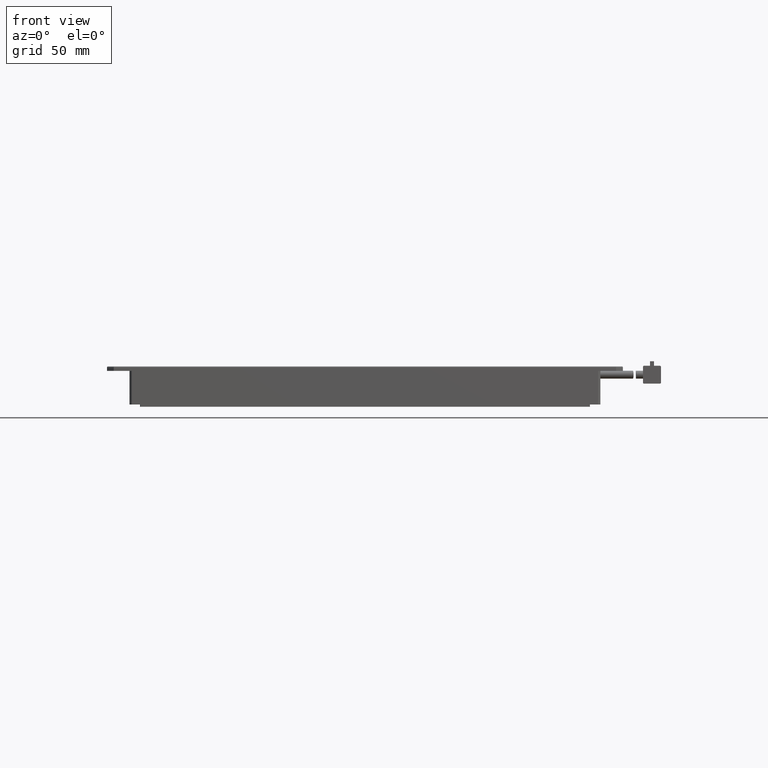
[diagram: clean part render]
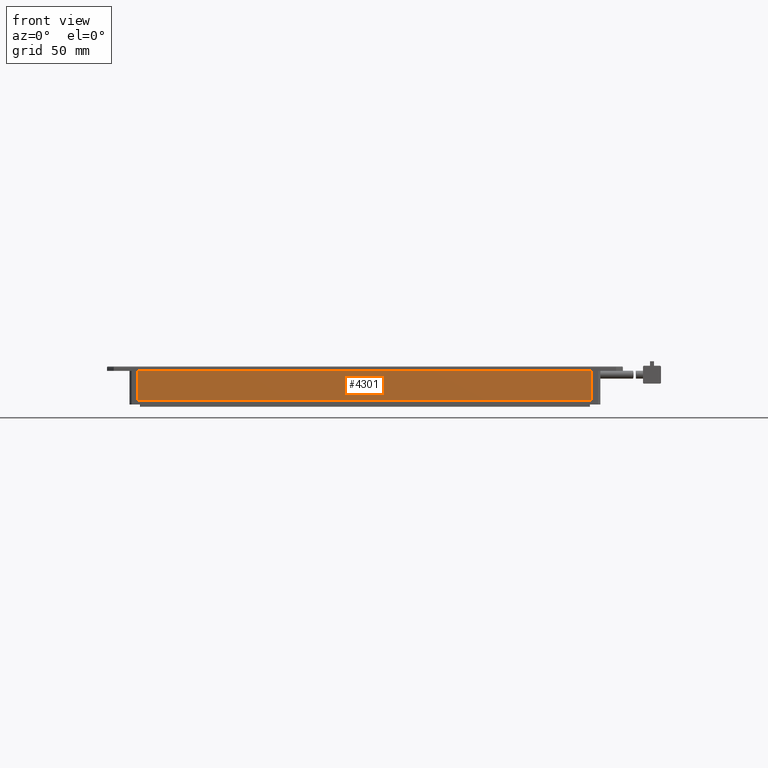
[diagram: same view with one face highlighted and labeled with its STEP entity id]
A machine part, front view. The second image highlights one B-rep face of the part: STEP entity #4301.
In plain terms, the highlighted planar face has unit normal (-0, 1, 0).
Its self-contained STEP definition (entity closure, byte-faithful):
#601 = DIRECTION ( 'NONE',  ( -1.243375699538492300E-016, -1.545983130202835100E-032, 1.000000000000000000 ) ) ;
#1438 = VECTOR ( 'NONE', #601, 1000.000000000000000 ) ;
#1871 = LINE ( 'NONE', #4839, #18119 ) ;
#2231 = DIRECTION ( 'NONE',  ( -1.000000000000000000, -1.243375699538492300E-016, -1.243375699538492300E-016 ) ) ;
#2743 = LINE ( 'NONE', #4883, #20672 ) ;
#2836 = DIRECTION ( 'NONE',  ( 1.000000000000000000, 1.243375699538492300E-016, 1.243375699538492300E-016 ) ) ;
#3466 = VERTEX_POINT ( 'NONE', #17886 ) ;
#3962 = PLANE ( 'NONE',  #18662 ) ;
#4301 = ADVANCED_FACE ( 'NONE', ( #5844 ), #3962, .F. ) ;
#4550 = VERTEX_POINT ( 'NONE', #9807 ) ;
#4839 = CARTESIAN_POINT ( 'NONE',  ( 18.66575058247610400, -139.3787539827808600, -2.363473999844600800E-011 ) ) ;
#4883 = CARTESIAN_POINT ( 'NONE',  ( 18.66575058247610400, -139.3787539827808600, -13.00000000002365900 ) ) ;
#5844 = FACE_OUTER_BOUND ( 'NONE', #11862, .T. ) ;
#6114 = LINE ( 'NONE', #12775, #1438 ) ;
#6759 = CARTESIAN_POINT ( 'NONE',  ( 18.66575058247610400, -139.3787539827808600, -6.500000000023645100 ) ) ;
#6772 = EDGE_CURVE ( 'NONE', #4550, #11994, #2743, .T. ) ;
#6928 = ORIENTED_EDGE ( 'NONE', *, *, #16944, .F. ) ;
#9807 = CARTESIAN_POINT ( 'NONE',  ( 119.8157505824761400, -139.3787539827808600, -13.00000000002364900 ) ) ;
#10189 = ORIENTED_EDGE ( 'NONE', *, *, #12022, .F. ) ;
#11403 = CARTESIAN_POINT ( 'NONE',  ( -82.48424941752387000, -139.3787539827808600, -13.00000000002365200 ) ) ;
#11862 = EDGE_LOOP ( 'NONE', ( #14715, #10189, #6928, #20848 ) ) ;
#11967 = LINE ( 'NONE', #18638, #16296 ) ;
#11994 = VERTEX_POINT ( 'NONE', #11403 ) ;
#12022 = EDGE_CURVE ( 'NONE', #3466, #4550, #11967, .T. ) ;
#12775 = CARTESIAN_POINT ( 'NONE',  ( -82.48424941752387000, -139.3787539827808600, -6.500000000023656600 ) ) ;
#13387 = DIRECTION ( 'NONE',  ( 1.243375699538492300E-016, 1.545983130202835100E-032, -1.000000000000000000 ) ) ;
#14715 = ORIENTED_EDGE ( 'NONE', *, *, #6772, .F. ) ;
#15929 = VERTEX_POINT ( 'NONE', #16609 ) ;
#15971 = DIRECTION ( 'NONE',  ( 1.000000000000000000, 1.243375699538492300E-016, 1.243375699538492300E-016 ) ) ;
#16296 = VECTOR ( 'NONE', #13387, 1000.000000000000000 ) ;
#16609 = CARTESIAN_POINT ( 'NONE',  ( -82.48424941752387000, -139.3787539827808600, -2.364688306277784600E-011 ) ) ;
#16944 = EDGE_CURVE ( 'NONE', #15929, #3466, #1871, .T. ) ;
#17095 = EDGE_CURVE ( 'NONE', #11994, #15929, #6114, .T. ) ;
#17886 = CARTESIAN_POINT ( 'NONE',  ( 119.8157505824761400, -139.3787539827808600, -2.364081153061192700E-011 ) ) ;
#18119 = VECTOR ( 'NONE', #15971, 1000.000000000000000 ) ;
#18638 = CARTESIAN_POINT ( 'NONE',  ( 119.8157505824761400, -139.3787539827808600, -6.500000000023631800 ) ) ;
#18662 = AXIS2_PLACEMENT_3D ( 'NONE', #6759, #20489, #2836 ) ;
#20489 = DIRECTION ( 'NONE',  ( -1.243375699538492300E-016, 1.000000000000000000, 0.0000000000000000000 ) ) ;
#20672 = VECTOR ( 'NONE', #2231, 1000.000000000000000 ) ;
#20848 = ORIENTED_EDGE ( 'NONE', *, *, #17095, .F. ) ;